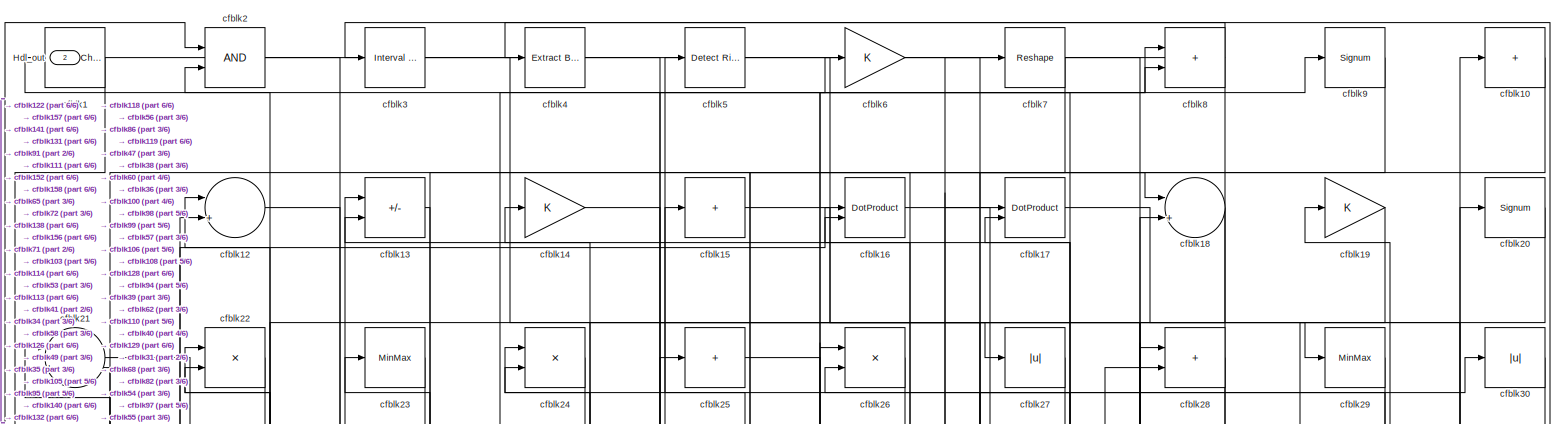
[diagram: root canvas - part 1/6, full width, top band]
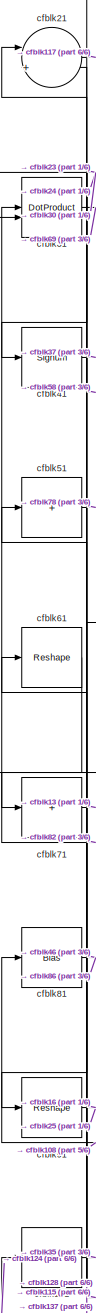
[diagram: root canvas - part 2/6, middle left region]
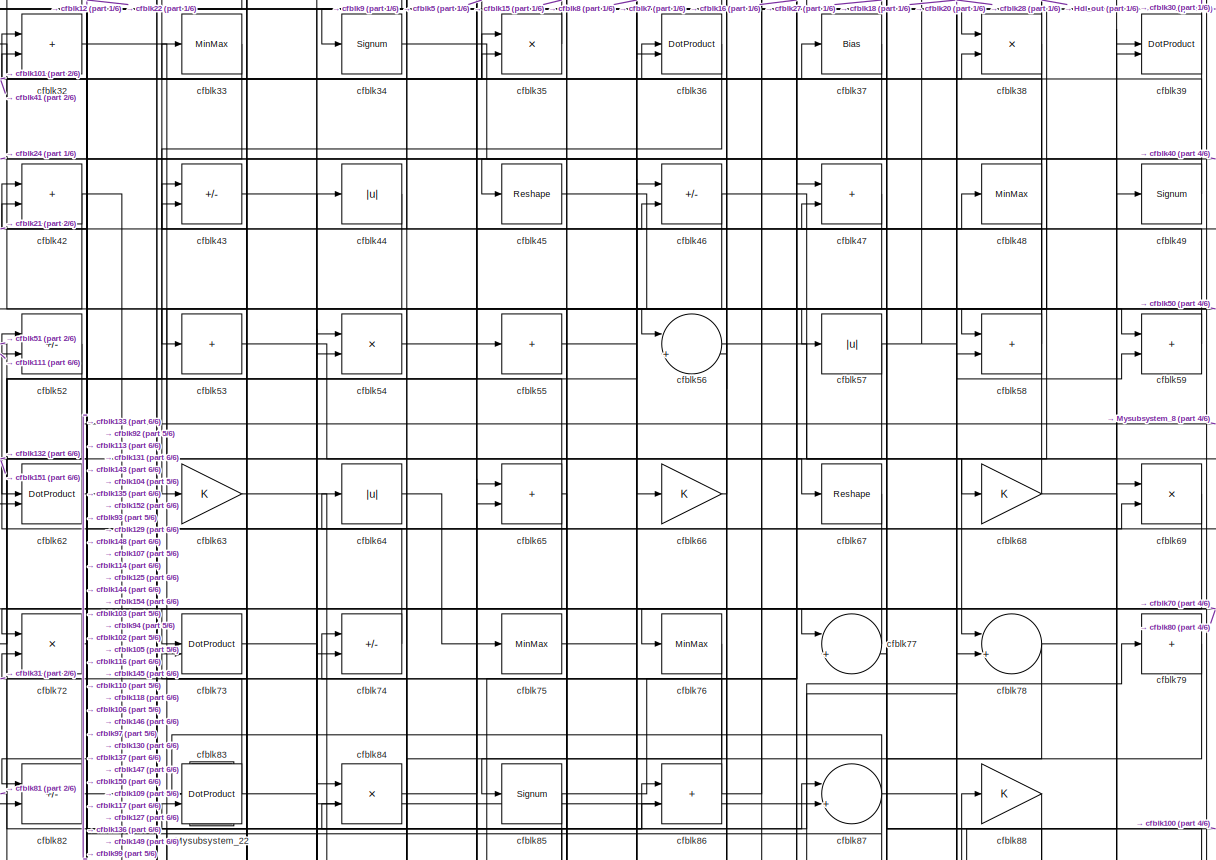
[diagram: root canvas - part 3/6, full width, middle band]
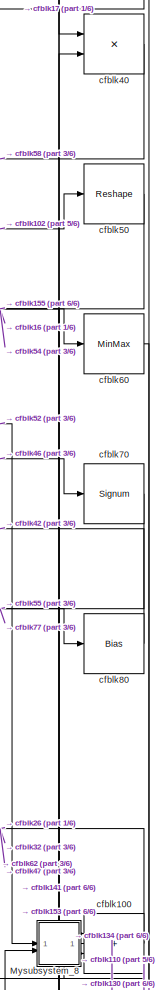
[diagram: root canvas - part 4/6, middle right region]
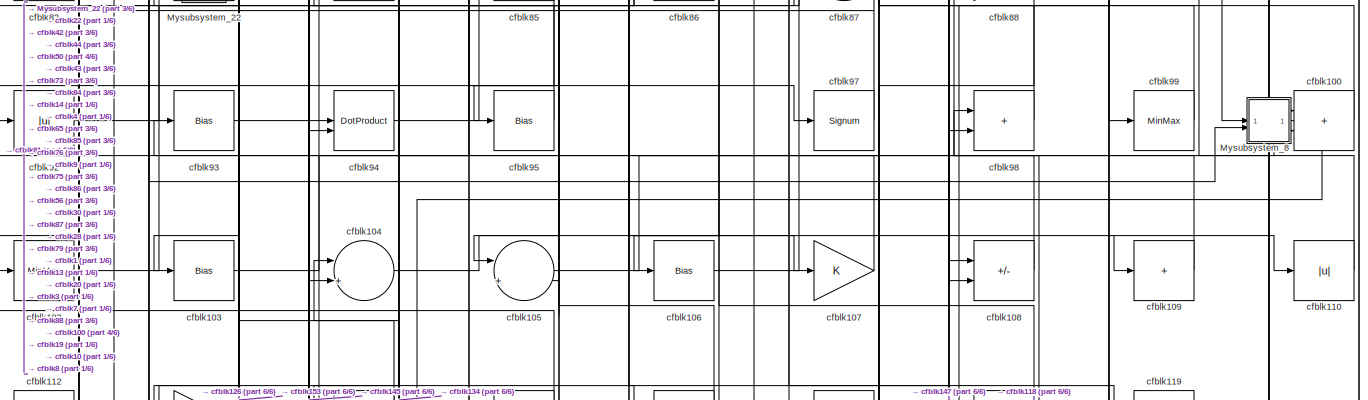
[diagram: root canvas - part 5/6, full width, middle band]
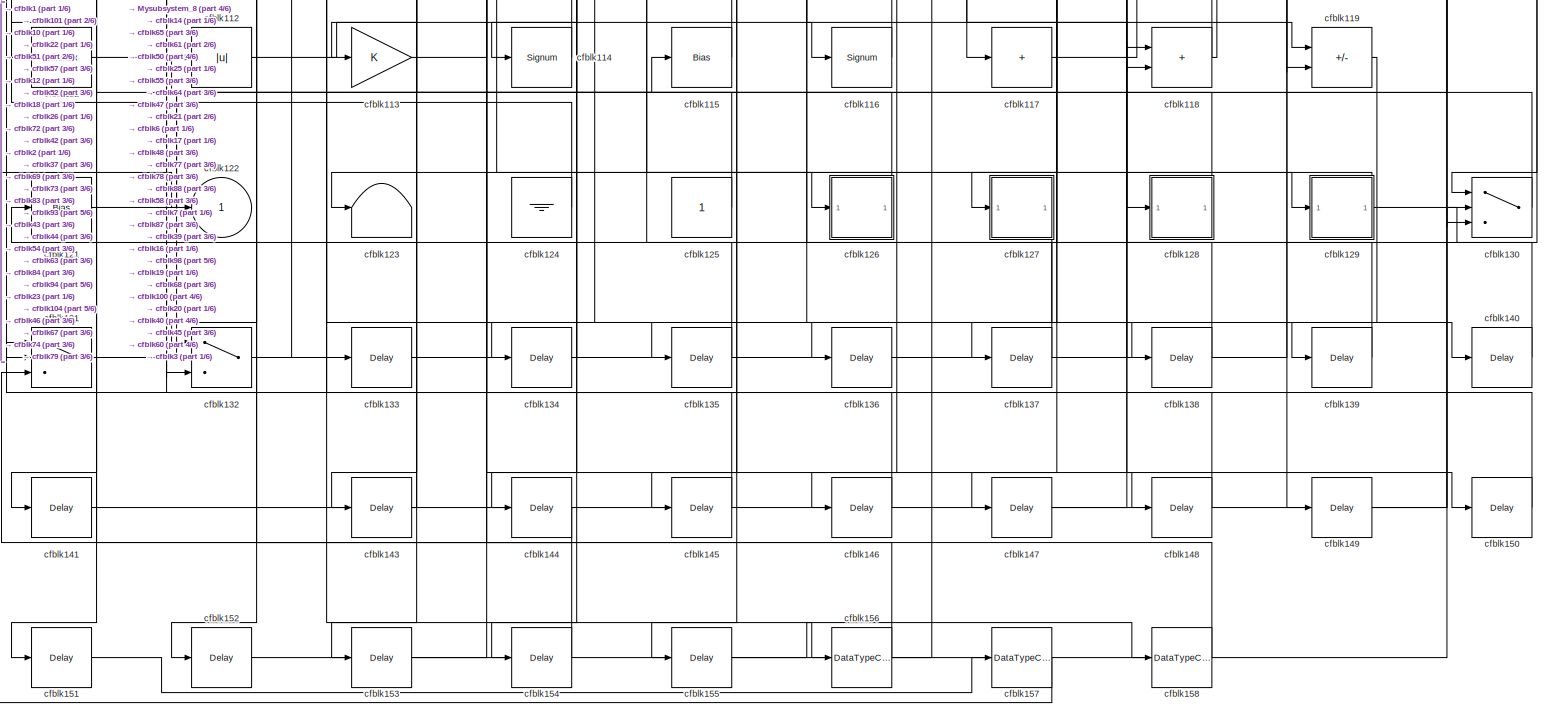
[diagram: root canvas - part 6/6, full width, bottom band]
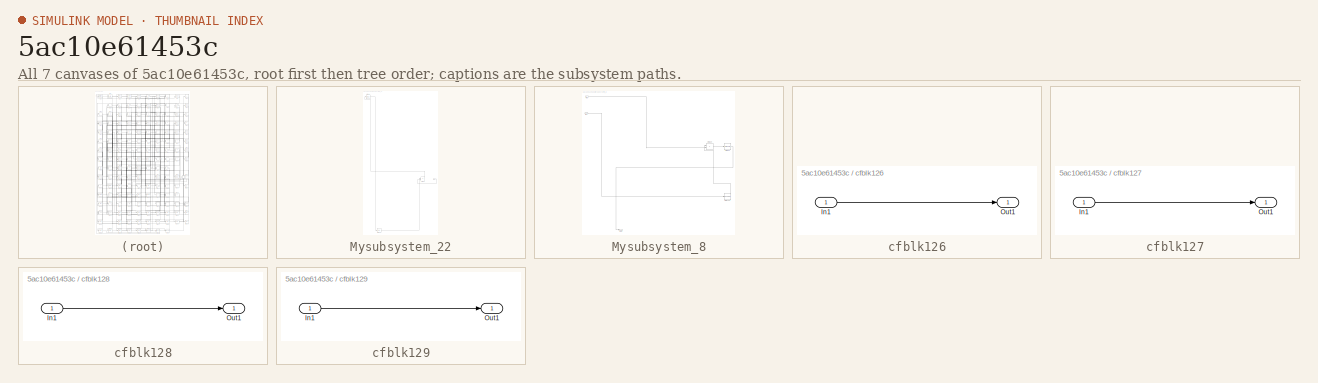
[diagram: thumbnail index - all 7 canvases of the model, root first then tree order]
MODEL slx_5ac10e61453c
KIND model
CONFIG AbsTol = auto
CONFIG EnableMultiTasking = off
CONFIG FixedStep = auto
CONFIG MaxStep = auto
CONFIG MinStep = auto
CONFIG RelTol = 1e-3
CONFIG SampleTimeConstraint = Unconstrained
CONFIG SolverName = VariableStepAuto
CONFIG StartTime = 0.0
CONFIG StopTime = 10.0
BLOCK [Outport] Hdl_out
  OutDataTypeStr = uint8
  Port = 2
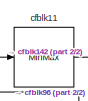
[diagram: Mysubsystem_22 - part 1/2, top left region]
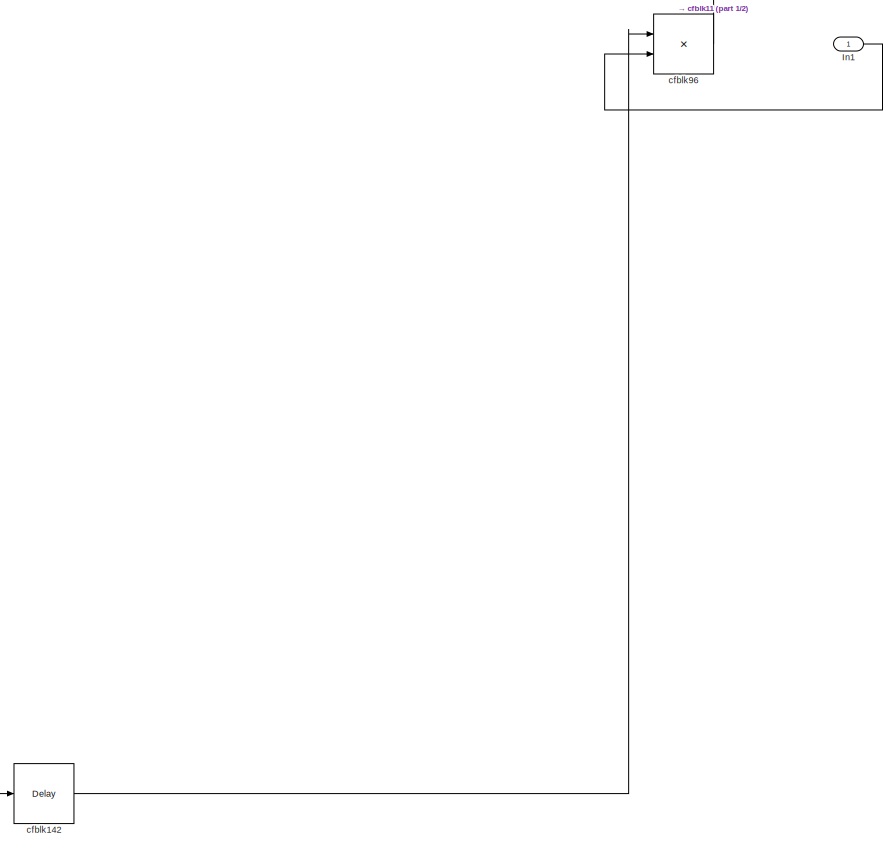
[diagram: Mysubsystem_22 - part 2/2, full width, bottom band]
BLOCK [SubSystem] Mysubsystem_22
  RTWFcnName = Mysubsystem_22
  RTWFcnNameOpts = User specified
  RTWFileNameOpts = Use function name
  RTWSystemCode = Reusable function
  TreatAsAtomicUnit = on
BLOCK [Inport] Mysubsystem_22/In1
BLOCK [MinMax] Mysubsystem_22/cfblk11
BLOCK [Delay] Mysubsystem_22/cfblk142
  InputPortMap = u0
  SampleTime = 1
BLOCK [Product] Mysubsystem_22/cfblk96
  Inputs = */
  RndMeth = Zero
  SaturateOnIntegerOverflow = on
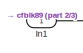
[diagram: Mysubsystem_8 - part 1/3, top left region]
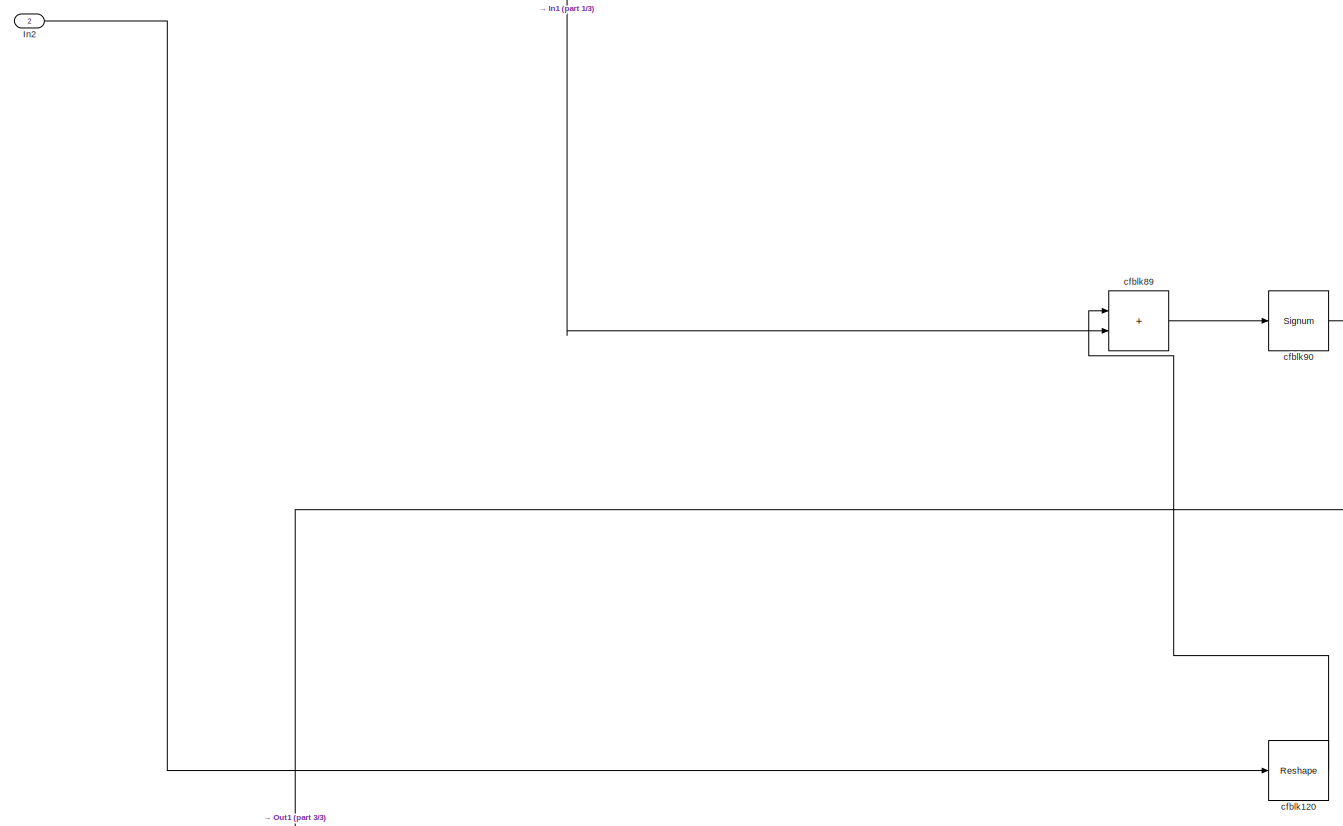
[diagram: Mysubsystem_8 - part 2/3, full width, middle band]
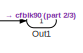
[diagram: Mysubsystem_8 - part 3/3, bottom left region]
BLOCK [SubSystem] Mysubsystem_8
  RTWFcnName = Mysubsystem_8
  RTWFcnNameOpts = User specified
  RTWFileNameOpts = Use function name
  RTWSystemCode = Reusable function
  TreatAsAtomicUnit = on
BLOCK [Inport] Mysubsystem_8/In1
BLOCK [Inport] Mysubsystem_8/In2
  Port = 2
BLOCK [Outport] Mysubsystem_8/Out1
BLOCK [Reshape] Mysubsystem_8/cfblk120
BLOCK [Sum] Mysubsystem_8/cfblk89
  IconShape = rectangular
BLOCK [Signum] Mysubsystem_8/cfblk90
BLOCK [Reference] cfblk1  REF=simulink/Logic and Bit
Operations/Detect
Change
  LibrarySourceBlock = hdlsllib/Logic and Bit\nOperations/Detect\nChange
  SourceBlock = simulink/Logic and Bit\nOperations/Detect\nChange
  SourceType = Detect Change
BLOCK [Sum] cfblk10
  IconShape = rectangular
  Inputs = +
  OutDataTypeStr = uint8
BLOCK [Sum] cfblk100
  IconShape = rectangular
  OutDataTypeStr = uint8
BLOCK [Sum] cfblk101
  IconShape = rectangular
  Inputs = +
  OutDataTypeStr = uint8
BLOCK [MinMax] cfblk102
  OutDataTypeStr = uint8
BLOCK [Bias] cfblk103
  Bias = 0.0
  SaturateOnIntegerOverflow = off
BLOCK [Sum] cfblk104
  Inputs = |++
  OutDataTypeStr = uint8
BLOCK [Sum] cfblk105
  Inputs = |++
  OutDataTypeStr = uint8
BLOCK [Bias] cfblk106
  Bias = 0.0
  SaturateOnIntegerOverflow = off
BLOCK [Gain] cfblk107
  OutDataTypeStr = uint8
BLOCK [Sum] cfblk108
  IconShape = rectangular
  Inputs = +-
  OutDataTypeStr = uint8
BLOCK [Sum] cfblk109
  IconShape = rectangular
  Inputs = +
  OutDataTypeStr = uint8
BLOCK [Abs] cfblk110
  OutDataTypeStr = uint8
  SaturateOnIntegerOverflow = off
BLOCK [MinMax] cfblk111
  OutDataTypeStr = uint8
BLOCK [Abs] cfblk112
  OutDataTypeStr = uint8
  SaturateOnIntegerOverflow = off
BLOCK [Gain] cfblk113
  OutDataTypeStr = uint8
BLOCK [Signum] cfblk114
BLOCK [Bias] cfblk115
  Bias = 0.0
  SaturateOnIntegerOverflow = off
BLOCK [Signum] cfblk116
BLOCK [Sum] cfblk117
  IconShape = rectangular
  Inputs = +
  OutDataTypeStr = uint8
BLOCK [Sum] cfblk118
  IconShape = rectangular
  OutDataTypeStr = uint8
BLOCK [Sum] cfblk119
  IconShape = rectangular
  Inputs = +-
  OutDataTypeStr = uint8
BLOCK [Sum] cfblk12
  Inputs = |++
  OutDataTypeStr = uint8
BLOCK [Bias] cfblk121
  Bias = 0.0
  SaturateOnIntegerOverflow = off
BLOCK [Outport] cfblk122
  OutDataTypeStr = uint8
  VectorParamsAs1DForOutWhenUnconnected = off
BLOCK [Terminator] cfblk123
BLOCK [Ground] cfblk124
BLOCK [Constant] cfblk125
  OutDataTypeStr = uint8
  SampleTime = -1
BLOCK [SubSystem] cfblk126
  LibrarySourceBlock = hdlsllib/Ports &\nSubsystems/Subsystem
BLOCK [Inport] cfblk126/In1
BLOCK [Outport] cfblk126/Out1
BLOCK [SubSystem] cfblk127
  LibrarySourceBlock = hdlsllib/Ports &\nSubsystems/Subsystem
BLOCK [Inport] cfblk127/In1
BLOCK [Outport] cfblk127/Out1
BLOCK [SubSystem] cfblk128
  LibrarySourceBlock = hdlsllib/Ports &\nSubsystems/Subsystem
BLOCK [Inport] cfblk128/In1
BLOCK [Outport] cfblk128/Out1
BLOCK [SubSystem] cfblk129
  LibrarySourceBlock = hdlsllib/Ports &\nSubsystems/Subsystem
BLOCK [Inport] cfblk129/In1
BLOCK [Outport] cfblk129/Out1
BLOCK [Sum] cfblk13
  IconShape = rectangular
  Inputs = +-
  OutDataTypeStr = uint8
BLOCK [Switch] cfblk130
  InputSameDT = off
  OutDataTypeStr = uint8
  SaturateOnIntegerOverflow = off
BLOCK [Switch] cfblk131
  InputSameDT = off
  OutDataTypeStr = uint8
  SaturateOnIntegerOverflow = off
BLOCK [Switch] cfblk132
  InputSameDT = off
  OutDataTypeStr = uint8
  SaturateOnIntegerOverflow = off
BLOCK [Delay] cfblk133
  InputPortMap = u0
  SampleTime = 1
BLOCK [Delay] cfblk134
  InputPortMap = u0
  SampleTime = 1
BLOCK [Delay] cfblk135
  InputPortMap = u0
  SampleTime = 1
BLOCK [Delay] cfblk136
  InputPortMap = u0
  SampleTime = 1
BLOCK [Delay] cfblk137
  InputPortMap = u0
  SampleTime = 1
BLOCK [Delay] cfblk138
  InputPortMap = u0
  SampleTime = 1
BLOCK [Delay] cfblk139
  InputPortMap = u0
  SampleTime = 1
BLOCK [Gain] cfblk14
  OutDataTypeStr = uint8
BLOCK [Delay] cfblk140
  InputPortMap = u0
  SampleTime = 1
BLOCK [Delay] cfblk141
  InputPortMap = u0
  SampleTime = 1
BLOCK [Delay] cfblk143
  InputPortMap = u0
  SampleTime = 1
BLOCK [Delay] cfblk144
  InputPortMap = u0
  SampleTime = 1
BLOCK [Delay] cfblk145
  InputPortMap = u0
  SampleTime = 1
BLOCK [Delay] cfblk146
  InputPortMap = u0
  SampleTime = 1
BLOCK [Delay] cfblk147
  InputPortMap = u0
  SampleTime = 1
BLOCK [Delay] cfblk148
  InputPortMap = u0
  SampleTime = 1
BLOCK [Delay] cfblk149
  InputPortMap = u0
  SampleTime = 1
BLOCK [Sum] cfblk15
  IconShape = rectangular
  Inputs = +
  OutDataTypeStr = uint8
BLOCK [Delay] cfblk150
  InputPortMap = u0
  SampleTime = 1
BLOCK [Delay] cfblk151
  InputPortMap = u0
  SampleTime = 1
BLOCK [Delay] cfblk152
  InputPortMap = u0
  SampleTime = 1
BLOCK [Delay] cfblk153
  InputPortMap = u0
  SampleTime = 1
BLOCK [Delay] cfblk154
  InputPortMap = u0
  SampleTime = 1
BLOCK [Delay] cfblk155
  InputPortMap = u0
  SampleTime = 1
BLOCK [DataTypeConversion] cfblk156
  OutDataTypeStr = uint8
  RndMeth = Floor
  SaturateOnIntegerOverflow = off
BLOCK [DataTypeConversion] cfblk157
  OutDataTypeStr = uint8
  RndMeth = Floor
  SaturateOnIntegerOverflow = off
BLOCK [DataTypeConversion] cfblk158
  OutDataTypeStr = uint8
  RndMeth = Floor
  SaturateOnIntegerOverflow = off
BLOCK [DotProduct] cfblk16
  OutDataTypeStr = uint8
BLOCK [DotProduct] cfblk17
  OutDataTypeStr = uint8
BLOCK [Sum] cfblk18
  Inputs = |++
  OutDataTypeStr = uint8
BLOCK [Gain] cfblk19
  OutDataTypeStr = uint8
BLOCK [Logic] cfblk2
  AllPortsSameDT = off
  OutDataTypeStr = boolean
BLOCK [Signum] cfblk20
BLOCK [Sum] cfblk21
  Inputs = |++
  OutDataTypeStr = uint8
BLOCK [Product] cfblk22
  Inputs = */
  OutDataTypeStr = uint8
  RndMeth = Zero
  SaturateOnIntegerOverflow = on
BLOCK [MinMax] cfblk23
  OutDataTypeStr = uint8
BLOCK [Product] cfblk24
  Inputs = */
  OutDataTypeStr = uint8
  RndMeth = Zero
  SaturateOnIntegerOverflow = on
BLOCK [Sum] cfblk25
  IconShape = rectangular
  Inputs = +
  OutDataTypeStr = uint8
BLOCK [Product] cfblk26
  Inputs = */
  OutDataTypeStr = uint8
  RndMeth = Zero
  SaturateOnIntegerOverflow = on
BLOCK [Abs] cfblk27
  OutDataTypeStr = uint8
  SaturateOnIntegerOverflow = off
BLOCK [Sum] cfblk28
  IconShape = rectangular
  OutDataTypeStr = uint8
BLOCK [MinMax] cfblk29
  OutDataTypeStr = uint8
BLOCK [Reference] cfblk3  REF=hdlsllib/Logic and Bit
Operations/Interval Test
  SourceBlock = hdlsllib/Logic and Bit\nOperations/Interval Test
  SourceType = Interval Test
BLOCK [Abs] cfblk30
  OutDataTypeStr = uint8
  SaturateOnIntegerOverflow = off
BLOCK [DotProduct] cfblk31
  OutDataTypeStr = uint8
BLOCK [Sum] cfblk32
  IconShape = rectangular
  OutDataTypeStr = uint8
BLOCK [MinMax] cfblk33
  OutDataTypeStr = uint8
BLOCK [Signum] cfblk34
BLOCK [Product] cfblk35
  Inputs = */
  OutDataTypeStr = uint8
  RndMeth = Zero
  SaturateOnIntegerOverflow = on
BLOCK [DotProduct] cfblk36
  OutDataTypeStr = uint8
BLOCK [Bias] cfblk37
  Bias = 0.0
  SaturateOnIntegerOverflow = off
BLOCK [Product] cfblk38
  Inputs = */
  OutDataTypeStr = uint8
  RndMeth = Zero
  SaturateOnIntegerOverflow = on
BLOCK [DotProduct] cfblk39
  OutDataTypeStr = uint8
BLOCK [Reference] cfblk4  REF=simulink/Logic and Bit
Operations/Extract Bits
  LibrarySourceBlock = hdlsllib/Logic and Bit\nOperations/Extract Bits
  SourceBlock = simulink/Logic and Bit\nOperations/Extract Bits
  SourceType = Extract Bits
BLOCK [Product] cfblk40
  Inputs = */
  OutDataTypeStr = uint8
  RndMeth = Zero
  SaturateOnIntegerOverflow = on
BLOCK [Signum] cfblk41
BLOCK [Sum] cfblk42
  IconShape = rectangular
  OutDataTypeStr = uint8
BLOCK [Sum] cfblk43
  IconShape = rectangular
  Inputs = +-
  OutDataTypeStr = uint8
BLOCK [Abs] cfblk44
  OutDataTypeStr = uint8
  SaturateOnIntegerOverflow = off
BLOCK [Reshape] cfblk45
BLOCK [Sum] cfblk46
  IconShape = rectangular
  Inputs = +-
  OutDataTypeStr = uint8
BLOCK [Sum] cfblk47
  IconShape = rectangular
  OutDataTypeStr = uint8
BLOCK [MinMax] cfblk48
  OutDataTypeStr = uint8
BLOCK [Signum] cfblk49
BLOCK [Reference] cfblk5  REF=hdlsllib/Logic and Bit
Operations/Detect Rise
Nonnegative
  SourceBlock = hdlsllib/Logic and Bit\nOperations/Detect Rise\nNonnegative
  SourceType = Detect Rise Nonnegative
BLOCK [Reshape] cfblk50
BLOCK [Sum] cfblk51
  IconShape = rectangular
  Inputs = +
  OutDataTypeStr = uint8
BLOCK [Sum] cfblk52
  IconShape = rectangular
  Inputs = +-
  OutDataTypeStr = uint8
BLOCK [Sum] cfblk53
  IconShape = rectangular
  Inputs = +
  OutDataTypeStr = uint8
BLOCK [Product] cfblk54
  Inputs = */
  OutDataTypeStr = uint8
  RndMeth = Zero
  SaturateOnIntegerOverflow = on
BLOCK [Sum] cfblk55
  IconShape = rectangular
  Inputs = +
  OutDataTypeStr = uint8
BLOCK [Sum] cfblk56
  Inputs = |++
  OutDataTypeStr = uint8
BLOCK [Abs] cfblk57
  OutDataTypeStr = uint8
  SaturateOnIntegerOverflow = off
BLOCK [Sum] cfblk58
  IconShape = rectangular
  OutDataTypeStr = uint8
BLOCK [Sum] cfblk59
  IconShape = rectangular
  OutDataTypeStr = uint8
BLOCK [Gain] cfblk6
  OutDataTypeStr = uint8
BLOCK [MinMax] cfblk60
  OutDataTypeStr = uint8
BLOCK [Reshape] cfblk61
BLOCK [DotProduct] cfblk62
  OutDataTypeStr = uint8
BLOCK [Gain] cfblk63
  OutDataTypeStr = uint8
BLOCK [Abs] cfblk64
  OutDataTypeStr = uint8
  SaturateOnIntegerOverflow = off
BLOCK [Sum] cfblk65
  IconShape = rectangular
  OutDataTypeStr = uint8
BLOCK [Gain] cfblk66
  OutDataTypeStr = uint8
BLOCK [Reshape] cfblk67
BLOCK [Gain] cfblk68
  OutDataTypeStr = uint8
BLOCK [Product] cfblk69
  Inputs = */
  OutDataTypeStr = uint8
  RndMeth = Zero
  SaturateOnIntegerOverflow = on
BLOCK [Reshape] cfblk7
BLOCK [Signum] cfblk70
BLOCK [Sum] cfblk71
  IconShape = rectangular
  Inputs = +
  OutDataTypeStr = uint8
BLOCK [Product] cfblk72
  Inputs = */
  OutDataTypeStr = uint8
  RndMeth = Zero
  SaturateOnIntegerOverflow = on
BLOCK [DotProduct] cfblk73
  OutDataTypeStr = uint8
BLOCK [Sum] cfblk74
  IconShape = rectangular
  Inputs = +-
  OutDataTypeStr = uint8
BLOCK [MinMax] cfblk75
  OutDataTypeStr = uint8
BLOCK [MinMax] cfblk76
  OutDataTypeStr = uint8
BLOCK [Sum] cfblk77
  Inputs = |++
  OutDataTypeStr = uint8
BLOCK [Sum] cfblk78
  Inputs = |++
  OutDataTypeStr = uint8
BLOCK [Sum] cfblk79
  IconShape = rectangular
  Inputs = +
  OutDataTypeStr = uint8
BLOCK [Sum] cfblk8
  IconShape = rectangular
  OutDataTypeStr = uint8
BLOCK [Bias] cfblk80
  Bias = 0.0
  SaturateOnIntegerOverflow = off
BLOCK [Bias] cfblk81
  Bias = 0.0
  SaturateOnIntegerOverflow = off
BLOCK [Sum] cfblk82
  IconShape = rectangular
  Inputs = +-
  OutDataTypeStr = uint8
BLOCK [DotProduct] cfblk83
  OutDataTypeStr = uint8
BLOCK [Product] cfblk84
  Inputs = */
  OutDataTypeStr = uint8
  RndMeth = Zero
  SaturateOnIntegerOverflow = on
BLOCK [Signum] cfblk85
BLOCK [Sum] cfblk86
  IconShape = rectangular
  OutDataTypeStr = uint8
BLOCK [Sum] cfblk87
  Inputs = |++
  OutDataTypeStr = uint8
BLOCK [Gain] cfblk88
  OutDataTypeStr = uint8
BLOCK [Signum] cfblk9
BLOCK [Reshape] cfblk91
BLOCK [Abs] cfblk92
  OutDataTypeStr = uint8
  SaturateOnIntegerOverflow = off
BLOCK [Bias] cfblk93
  Bias = 0.0
  SaturateOnIntegerOverflow = off
BLOCK [DotProduct] cfblk94
  OutDataTypeStr = uint8
BLOCK [Bias] cfblk95
  Bias = 0.0
  SaturateOnIntegerOverflow = off
BLOCK [Signum] cfblk97
BLOCK [Sum] cfblk98
  IconShape = rectangular
  OutDataTypeStr = uint8
BLOCK [MinMax] cfblk99
  OutDataTypeStr = uint8
LINE Mysubsystem_22/In1:1 -> Mysubsystem_22/cfblk96:2
LINE Mysubsystem_22/cfblk11:1 -> Mysubsystem_22/cfblk142:1
LINE Mysubsystem_22/cfblk142:1 -> Mysubsystem_22/cfblk96:1
LINE Mysubsystem_22/cfblk96:1 -> Mysubsystem_22/cfblk11:1
LINE Mysubsystem_8/In1:1 -> Mysubsystem_8/cfblk89:2
LINE Mysubsystem_8/In2:1 -> Mysubsystem_8/cfblk120:1
LINE Mysubsystem_8/cfblk120:1 -> Mysubsystem_8/cfblk89:1
LINE Mysubsystem_8/cfblk89:1 -> Mysubsystem_8/cfblk90:1
LINE Mysubsystem_8/cfblk90:1 -> Mysubsystem_8/Out1:1
LINE Mysubsystem_8:1 -> cfblk134:1
NET cfblk100:1 -> cfblk26:2, cfblk32:1, cfblk47:2
LINE cfblk101:1 -> cfblk35:1
LINE cfblk102:1 -> cfblk50:1
LINE cfblk103:1 -> cfblk65:2
LINE cfblk104:1 -> cfblk107:1
NET cfblk105:1 -> cfblk10:1, cfblk8:2
LINE cfblk106:1 -> cfblk28:1
NET cfblk107:1 -> cfblk43:2, cfblk84:2
LINE cfblk108:1 -> cfblk81:1
LINE cfblk109:1 -> cfblk88:1
LINE cfblk10:1 -> cfblk141:1
NET cfblk110:1 -> cfblk100:2, cfblk19:1
LINE cfblk111:1 -> cfblk52:2
LINE cfblk112:1 -> cfblk116:1
LINE cfblk113:1 -> cfblk6:1
LINE cfblk114:1 -> cfblk23:1
LINE cfblk115:1 -> cfblk61:1
LINE cfblk116:1 -> cfblk64:1
LINE cfblk117:1 -> cfblk39:1
NET cfblk118:1 -> cfblk16:2, cfblk98:1
LINE cfblk119:1 -> cfblk139:1
LINE cfblk121:1 -> cfblk115:1
LINE cfblk124:1 -> cfblk101:1
NET cfblk125:1 -> cfblk72:2, cfblk74:1
LINE cfblk126/In1:1 -> cfblk126/Out1:1
NET cfblk126:1 -> cfblk112:1, cfblk93:1
LINE cfblk127/In1:1 -> cfblk127/Out1:1
LINE cfblk127:1 -> cfblk136:1
LINE cfblk128/In1:1 -> cfblk128/Out1:1
LINE cfblk128:1 -> cfblk51:1
LINE cfblk129/In1:1 -> cfblk129/Out1:1
NET cfblk129:1 -> cfblk123:1, cfblk3:1
LINE cfblk12:1 -> cfblk138:1
NET cfblk130:1 -> cfblk77:2, cfblk83:2
NET cfblk131:1 -> cfblk12:2, cfblk20:1
LINE cfblk132:1 -> cfblk44:1
LINE cfblk133:1 -> cfblk58:2
LINE cfblk134:1 -> cfblk104:1
LINE cfblk135:1 -> cfblk65:1
LINE cfblk136:1 -> cfblk39:2
LINE cfblk137:1 -> cfblk21:2
LINE cfblk138:1 -> cfblk17:2
LINE cfblk139:1 -> cfblk118:1
LINE cfblk13:1 -> cfblk103:1
LINE cfblk140:1 -> cfblk26:1
LINE cfblk141:1 -> cfblk100:1
LINE cfblk143:1 -> cfblk73:2
LINE cfblk144:1 -> cfblk131:3
LINE cfblk145:1 -> cfblk94:1
LINE cfblk146:1 -> cfblk131:1
LINE cfblk147:1 -> cfblk98:2
LINE cfblk148:1 -> cfblk132:2
LINE cfblk149:1 -> cfblk130:2
NET cfblk14:1 -> cfblk126:1, cfblk27:1
LINE cfblk150:1 -> cfblk83:1
LINE cfblk151:1 -> cfblk157:1
LINE cfblk152:1 -> cfblk84:1
LINE cfblk153:1 -> cfblk40:2
LINE cfblk154:1 -> cfblk54:1
LINE cfblk155:1 -> cfblk158:1
NET cfblk156:1 -> cfblk121:1, cfblk17:1
LINE cfblk157:1 -> cfblk2:1
LINE cfblk158:1 -> cfblk2:2
LINE cfblk15:1 -> cfblk29:1
NET cfblk16:1 -> cfblk18:1, cfblk38:1, cfblk60:1
LINE cfblk17:1 -> cfblk40:1
LINE cfblk18:1 -> cfblk152:1
LINE cfblk19:1 -> cfblk119:2
LINE cfblk1:1 -> cfblk122:1
NET cfblk20:1 -> cfblk108:2, cfblk34:1
LINE cfblk21:1 -> cfblk117:1
LINE cfblk22:1 -> cfblk111:1
LINE cfblk23:1 -> cfblk91:1
LINE cfblk24:1 -> cfblk41:1
LINE cfblk25:1 -> cfblk140:1
LINE cfblk26:1 -> cfblk132:1
LINE cfblk27:1 -> cfblk36:2
LINE cfblk28:1 -> cfblk94:2
LINE cfblk29:1 -> cfblk62:1
LINE cfblk2:1 -> cfblk156:1
NET cfblk30:1 -> cfblk31:2, cfblk68:1, cfblk82:1
LINE cfblk31:1 -> cfblk69:1
NET cfblk32:1 -> cfblk35:2, cfblk78:1
LINE cfblk33:1 -> cfblk72:1
LINE cfblk34:1 -> cfblk66:1
LINE cfblk35:1 -> cfblk15:1
LINE cfblk36:1 -> cfblk63:1
NET cfblk37:1 -> cfblk113:1, cfblk73:1
LINE cfblk38:1 -> cfblk45:1
NET cfblk39:1 -> cfblk24:1, cfblk82:2
LINE cfblk3:1 -> cfblk108:1
LINE cfblk40:1 -> cfblk58:1
LINE cfblk41:1 -> cfblk37:1
NET cfblk42:1 -> cfblk133:1, cfblk62:2
LINE cfblk43:1 -> cfblk135:1
LINE cfblk44:1 -> cfblk92:1
NET cfblk45:1 -> cfblk130:3, cfblk57:1
NET cfblk46:1 -> cfblk144:1, cfblk70:1
NET cfblk47:1 -> cfblk145:1, cfblk146:1
NET cfblk48:1 -> cfblk137:1, cfblk33:1
LINE cfblk49:1 -> cfblk5:1
LINE cfblk4:1 -> cfblk97:1
NET cfblk50:1 -> cfblk155:1, cfblk54:2
LINE cfblk51:1 -> cfblk78:2
NET cfblk52:1 -> Mysubsystem_8:1, cfblk132:3
LINE cfblk53:1 -> cfblk67:1
NET cfblk54:1 -> cfblk59:1, cfblk9:1
NET cfblk55:1 -> cfblk118:2, cfblk80:1, cfblk8:1
NET cfblk56:1 -> cfblk106:1, cfblk99:1
NET cfblk57:1 -> cfblk151:1, cfblk18:2, cfblk28:2, cfblk59:2
NET cfblk58:1 -> cfblk21:1, cfblk24:2
LINE cfblk59:1 -> cfblk43:1
LINE cfblk5:1 -> cfblk47:1
LINE cfblk60:1 -> cfblk130:1
LINE cfblk61:1 -> cfblk71:1
LINE cfblk62:1 -> Mysubsystem_8:2
NET cfblk63:1 -> cfblk129:1, cfblk148:1
LINE cfblk64:1 -> cfblk75:1
NET cfblk65:1 -> cfblk22:1, cfblk74:2, cfblk85:1
LINE cfblk66:1 -> cfblk36:1
LINE cfblk67:1 -> cfblk154:1
NET cfblk68:1 -> Hdl_out:1, cfblk149:1
NET cfblk69:1 -> cfblk131:2, cfblk143:1
LINE cfblk6:1 -> cfblk119:1
LINE cfblk70:1 -> cfblk77:1
LINE cfblk71:1 -> cfblk13:1
LINE cfblk72:1 -> cfblk12:1
LINE cfblk73:1 -> cfblk104:2
LINE cfblk74:1 -> cfblk52:1
NET cfblk75:1 -> cfblk109:1, cfblk110:1, cfblk48:1
LINE cfblk76:1 -> cfblk105:1
LINE cfblk77:1 -> cfblk76:1
NET cfblk78:1 -> cfblk147:1, cfblk49:1
LINE cfblk79:1 -> cfblk114:1
NET cfblk7:1 -> cfblk105:2, cfblk128:1
LINE cfblk80:1 -> cfblk42:1
NET cfblk81:1 -> cfblk46:1, cfblk86:2
NET cfblk82:1 -> cfblk31:1, cfblk69:2
NET cfblk83:1 -> cfblk56:1, cfblk87:2
NET cfblk84:1 -> cfblk46:2, cfblk55:1
NET cfblk85:1 -> cfblk102:1, cfblk38:2
NET cfblk86:1 -> cfblk32:2, cfblk7:1
LINE cfblk87:1 -> cfblk150:1
LINE cfblk88:1 -> cfblk127:1
LINE cfblk8:1 -> cfblk4:1
NET cfblk91:1 -> cfblk16:1, cfblk25:1
LINE cfblk92:1 -> cfblk79:1
NET cfblk93:1 -> cfblk153:1, cfblk86:1
NET cfblk94:1 -> cfblk30:1, cfblk87:1
NET cfblk95:1 -> cfblk14:1, cfblk22:2
NET cfblk97:1 -> Mysubsystem_22:1, cfblk42:2
LINE cfblk98:1 -> cfblk13:2
LINE cfblk99:1 -> cfblk1:1
NET cfblk9:1 -> cfblk53:1, cfblk56:2, cfblk95:1
note: NET lines group one-source signal fan-out (src -> all destinations, sorted); 1:1 wires keep LINE
